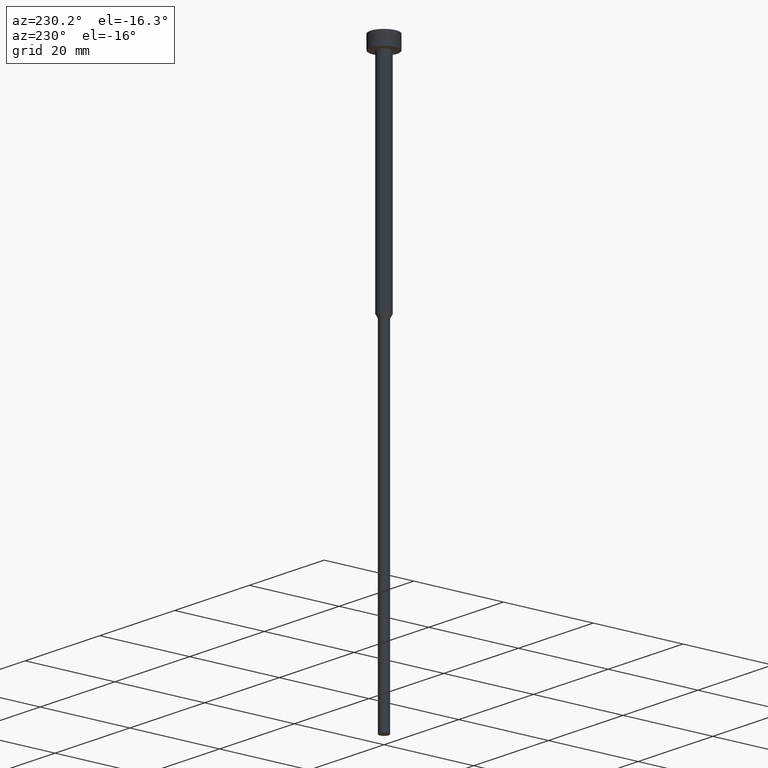
[diagram: clean part render]
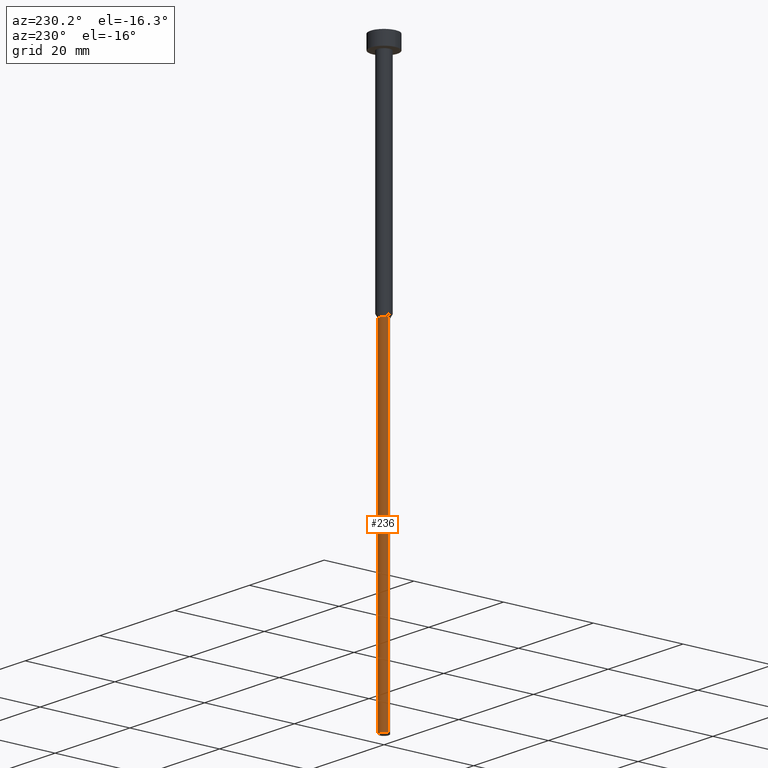
[diagram: same view with one face highlighted and labeled with its STEP entity id]
A machine part, auxiliary view. The second image highlights one B-rep face of the part: STEP entity #236.
In plain terms, the highlighted cylindrical surface (edge-blend (fillet) strip) has radius 1.05 mm, axis along (-0, -0, 1).
Its self-contained STEP definition (entity closure, byte-faithful):
#3 = ORIENTED_EDGE ( 'NONE', *, *, #298, .F. ) ;
#21 = CARTESIAN_POINT ( 'NONE',  ( 0.000000000000000000, 0.000000000000000000, -125.0000000000000000 ) ) ;
#45 = ORIENTED_EDGE ( 'NONE', *, *, #170, .T. ) ;
#74 = CIRCLE ( 'NONE', #313, 1.050000000000000044 ) ;
#83 = DIRECTION ( 'NONE',  ( -0.000000000000000000, -0.000000000000000000, 1.000000000000000000 ) ) ;
#100 = ORIENTED_EDGE ( 'NONE', *, *, #184, .F. ) ;
#116 = FACE_OUTER_BOUND ( 'NONE', #337, .T. ) ;
#119 = DIRECTION ( 'NONE',  ( 1.000000000000000000, 0.000000000000000000, 0.000000000000000000 ) ) ;
#132 = CIRCLE ( 'NONE', #346, 1.050000000000000044 ) ;
#138 = EDGE_CURVE ( 'NONE', #278, #299, #325, .T. ) ;
#143 = CARTESIAN_POINT ( 'NONE',  ( 0.000000000000000000, 0.000000000000000000, 0.000000000000000000 ) ) ;
#168 = CARTESIAN_POINT ( 'NONE',  ( -1.050000000000000044, 1.285879139104720978E-16, -50.77942286340599765 ) ) ;
#170 = EDGE_CURVE ( 'NONE', #230, #278, #74, .T. ) ;
#173 = CARTESIAN_POINT ( 'NONE',  ( -1.050000000000000044, 1.285879139104720978E-16, -125.0000000000000000 ) ) ;
#180 = DIRECTION ( 'NONE',  ( 1.000000000000000000, 0.000000000000000000, 0.000000000000000000 ) ) ;
#184 = EDGE_CURVE ( 'NONE', #352, #299, #132, .T. ) ;
#194 = CARTESIAN_POINT ( 'NONE',  ( 1.050000000000000044, 0.000000000000000000, -125.0000000000000000 ) ) ;
#199 = DIRECTION ( 'NONE',  ( -0.000000000000000000, -0.000000000000000000, 1.000000000000000000 ) ) ;
#200 = ORIENTED_EDGE ( 'NONE', *, *, #138, .T. ) ;
#222 = DIRECTION ( 'NONE',  ( -0.000000000000000000, -0.000000000000000000, 1.000000000000000000 ) ) ;
#230 = VERTEX_POINT ( 'NONE', #194 ) ;
#231 = CARTESIAN_POINT ( 'NONE',  ( 1.050000000000000044, 0.000000000000000000, -50.77942286340599765 ) ) ;
#235 = DIRECTION ( 'NONE',  ( -0.000000000000000000, -0.000000000000000000, 1.000000000000000000 ) ) ;
#236 = ADVANCED_FACE ( 'NONE', ( #116 ), #252, .T. ) ;
#252 = CYLINDRICAL_SURFACE ( 'NONE', #296, 1.050000000000000044 ) ;
#261 = CARTESIAN_POINT ( 'NONE',  ( 0.000000000000000000, 0.000000000000000000, -50.77942286340599765 ) ) ;
#269 = DIRECTION ( 'NONE',  ( -0.000000000000000000, -0.000000000000000000, 1.000000000000000000 ) ) ;
#278 = VERTEX_POINT ( 'NONE', #173 ) ;
#280 = LINE ( 'NONE', #354, #286 ) ;
#286 = VECTOR ( 'NONE', #199, 1000.000000000000000 ) ;
#296 = AXIS2_PLACEMENT_3D ( 'NONE', #143, #222, #119 ) ;
#298 = EDGE_CURVE ( 'NONE', #230, #352, #280, .T. ) ;
#299 = VERTEX_POINT ( 'NONE', #168 ) ;
#313 = AXIS2_PLACEMENT_3D ( 'NONE', #21, #269, #180 ) ;
#319 = DIRECTION ( 'NONE',  ( 1.000000000000000000, 0.000000000000000000, 0.000000000000000000 ) ) ;
#321 = VECTOR ( 'NONE', #83, 1000.000000000000000 ) ;
#325 = LINE ( 'NONE', #328, #321 ) ;
#328 = CARTESIAN_POINT ( 'NONE',  ( -1.050000000000000044, 1.285879139104720978E-16, 0.000000000000000000 ) ) ;
#337 = EDGE_LOOP ( 'NONE', ( #45, #200, #100, #3 ) ) ;
#346 = AXIS2_PLACEMENT_3D ( 'NONE', #261, #235, #319 ) ;
#352 = VERTEX_POINT ( 'NONE', #231 ) ;
#354 = CARTESIAN_POINT ( 'NONE',  ( 1.050000000000000044, 0.000000000000000000, 0.000000000000000000 ) ) ;